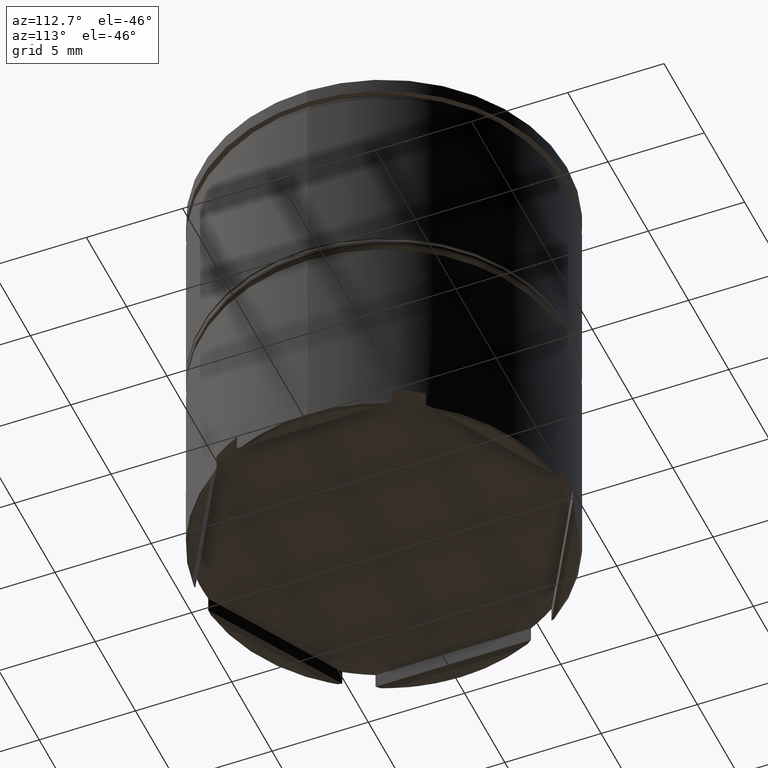
[diagram: clean part render]
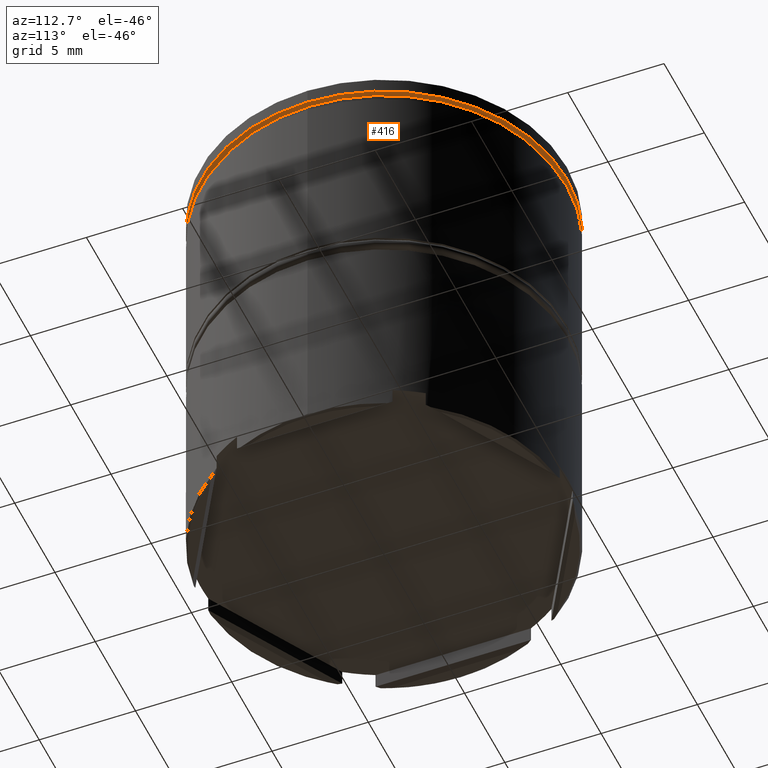
[diagram: same view with one face highlighted and labeled with its STEP entity id]
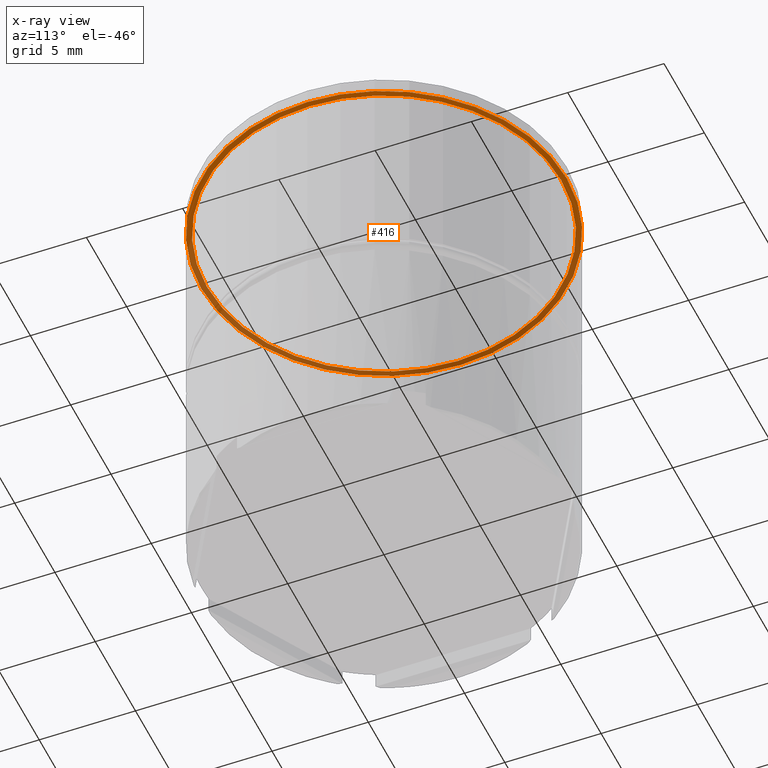
[diagram: x-ray of the same camera — body ghosted, the highlighted face saturated]
A machine part, auxiliary view. The second image highlights one B-rep face of the part: STEP entity #416.
The next image is the same camera in x-ray: the body ghosted, the highlighted face saturated — about 48% of this face is hidden behind the body in this view.
In plain terms, the highlighted planar face has unit normal (0, 0, -1).
Its self-contained STEP definition (entity closure, byte-faithful):
#9 = AXIS2_PLACEMENT_3D ( 'NONE', #187, #1566, #1438 ) ;
#187 = CARTESIAN_POINT ( 'NONE',  ( 0.000000000000000000, 0.000000000000000000, -0.8749999999999998890 ) ) ;
#292 = FACE_BOUND ( 'NONE', #884, .T. ) ;
#305 = EDGE_CURVE ( 'NONE', #1190, #1328, #1226, .T. ) ;
#322 = CIRCLE ( 'NONE', #9, 9.500000000000000000 ) ;
#341 = AXIS2_PLACEMENT_3D ( 'NONE', #917, #1288, #1310 ) ;
#355 = DIRECTION ( 'NONE',  ( -0.000000000000000000, -0.000000000000000000, 1.000000000000000000 ) ) ;
#369 = DIRECTION ( 'NONE',  ( 1.000000000000000000, 0.000000000000000000, 0.000000000000000000 ) ) ;
#400 = DIRECTION ( 'NONE',  ( 1.000000000000000000, 0.000000000000000000, 0.000000000000000000 ) ) ;
#408 = CARTESIAN_POINT ( 'NONE',  ( -9.199999999999999289, 1.126675055215564822E-15, -0.8749999999999998890 ) ) ;
#416 = ADVANCED_FACE ( 'NONE', ( #292, #429 ), #824, .T. ) ;
#427 = VERTEX_POINT ( 'NONE', #408 ) ;
#429 = FACE_OUTER_BOUND ( 'NONE', #1182, .T. ) ;
#451 = CIRCLE ( 'NONE', #1367, 9.199999999999999289 ) ;
#521 = AXIS2_PLACEMENT_3D ( 'NONE', #891, #618, #369 ) ;
#574 = EDGE_CURVE ( 'NONE', #427, #626, #1477, .T. ) ;
#618 = DIRECTION ( 'NONE',  ( -0.000000000000000000, -0.000000000000000000, 1.000000000000000000 ) ) ;
#626 = VERTEX_POINT ( 'NONE', #1404 ) ;
#715 = ORIENTED_EDGE ( 'NONE', *, *, #305, .F. ) ;
#761 = CARTESIAN_POINT ( 'NONE',  ( 9.500000000000000000, 0.000000000000000000, -0.8749999999999998890 ) ) ;
#789 = AXIS2_PLACEMENT_3D ( 'NONE', #1551, #805, #400 ) ;
#805 = DIRECTION ( 'NONE',  ( -0.000000000000000000, -0.000000000000000000, 1.000000000000000000 ) ) ;
#824 = PLANE ( 'NONE',  #341 ) ;
#884 = EDGE_LOOP ( 'NONE', ( #1174, #1158 ) ) ;
#891 = CARTESIAN_POINT ( 'NONE',  ( 0.000000000000000000, 0.000000000000000000, -0.8749999999999998890 ) ) ;
#917 = CARTESIAN_POINT ( 'NONE',  ( 0.000000000000000000, 9.500000000000000000, -0.8749999999999998890 ) ) ;
#928 = EDGE_CURVE ( 'NONE', #1328, #1190, #322, .T. ) ;
#955 = DIRECTION ( 'NONE',  ( 1.000000000000000000, 0.000000000000000000, 0.000000000000000000 ) ) ;
#1079 = CARTESIAN_POINT ( 'NONE',  ( 0.000000000000000000, 0.000000000000000000, -0.8749999999999998890 ) ) ;
#1158 = ORIENTED_EDGE ( 'NONE', *, *, #574, .T. ) ;
#1166 = EDGE_CURVE ( 'NONE', #626, #427, #451, .T. ) ;
#1174 = ORIENTED_EDGE ( 'NONE', *, *, #1166, .T. ) ;
#1182 = EDGE_LOOP ( 'NONE', ( #715, #1287 ) ) ;
#1190 = VERTEX_POINT ( 'NONE', #761 ) ;
#1226 = CIRCLE ( 'NONE', #521, 9.500000000000000000 ) ;
#1287 = ORIENTED_EDGE ( 'NONE', *, *, #928, .F. ) ;
#1288 = DIRECTION ( 'NONE',  ( 0.000000000000000000, 0.000000000000000000, -1.000000000000000000 ) ) ;
#1310 = DIRECTION ( 'NONE',  ( -1.000000000000000000, 0.000000000000000000, -0.000000000000000000 ) ) ;
#1328 = VERTEX_POINT ( 'NONE', #1498 ) ;
#1367 = AXIS2_PLACEMENT_3D ( 'NONE', #1079, #355, #955 ) ;
#1404 = CARTESIAN_POINT ( 'NONE',  ( 9.199999999999999289, 0.000000000000000000, -0.8749999999999998890 ) ) ;
#1438 = DIRECTION ( 'NONE',  ( 1.000000000000000000, 0.000000000000000000, 0.000000000000000000 ) ) ;
#1477 = CIRCLE ( 'NONE', #789, 9.199999999999999289 ) ;
#1498 = CARTESIAN_POINT ( 'NONE',  ( -9.500000000000000000, 1.163414459189985485E-15, -0.8749999999999998890 ) ) ;
#1551 = CARTESIAN_POINT ( 'NONE',  ( 0.000000000000000000, 0.000000000000000000, -0.8749999999999998890 ) ) ;
#1566 = DIRECTION ( 'NONE',  ( -0.000000000000000000, -0.000000000000000000, 1.000000000000000000 ) ) ;